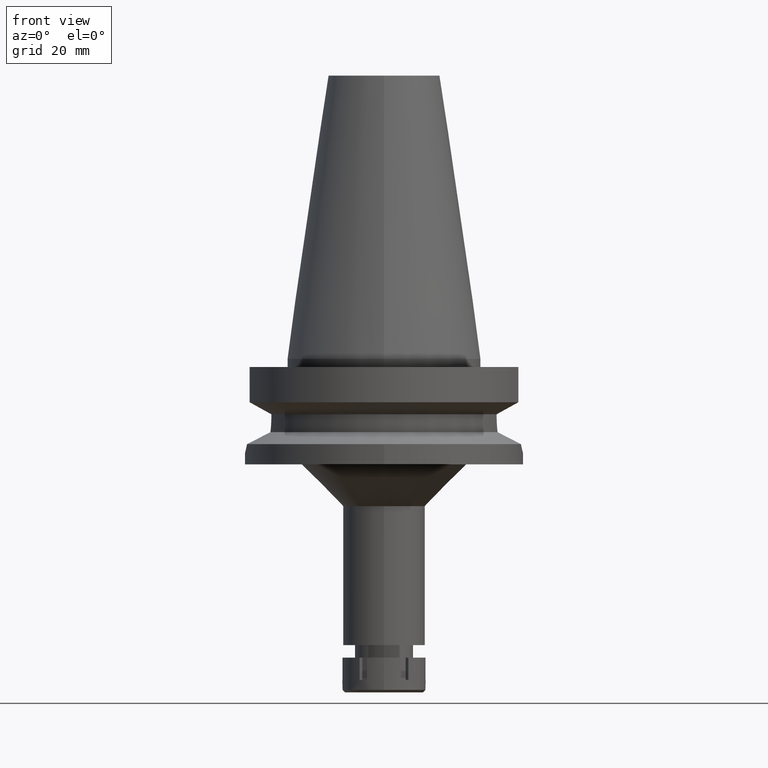
[diagram: clean part render]
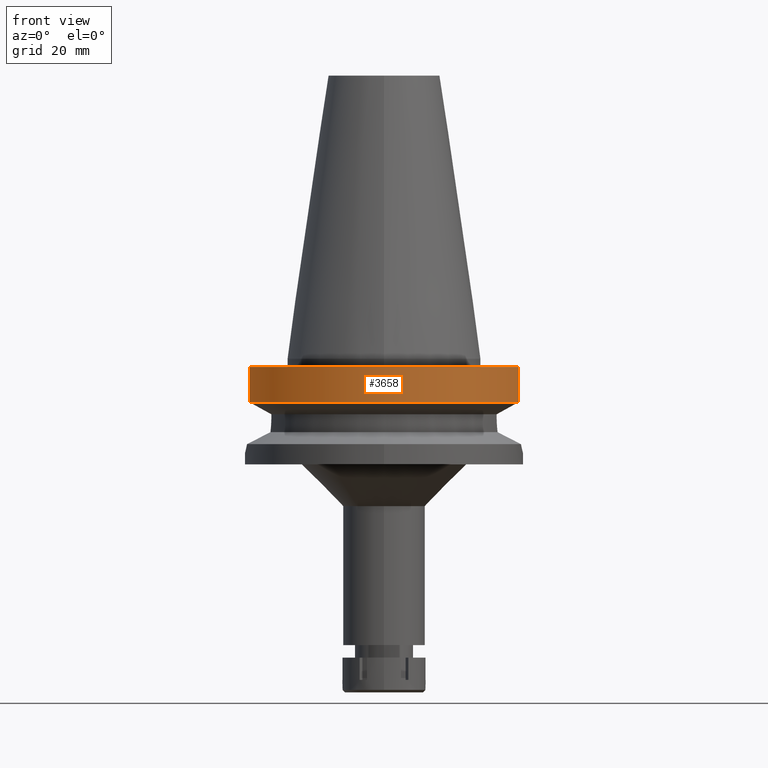
[diagram: same view with one face highlighted and labeled with its STEP entity id]
A machine part, front view. The second image highlights one B-rep face of the part: STEP entity #3658.
In plain terms, the highlighted cylindrical surface (partial cylindrical patch) has radius 50 mm, axis along (0, 0, -1).
Its self-contained STEP definition (entity closure, byte-faithful):
#65 = EDGE_CURVE ( 'NONE', #3279, #769, #309, .T. ) ;
#94 = CIRCLE ( 'NONE', #2636, 50.00000000000000000 ) ;
#199 = CARTESIAN_POINT ( 'NONE',  ( 0.0000000000000000000, 2.602864306907999599E-14, 112.5400000000000063 ) ) ;
#305 = DIRECTION ( 'NONE',  ( 0.0000000000000000000, 0.0000000000000000000, -1.000000000000000000 ) ) ;
#309 = LINE ( 'NONE', #2009, #1038 ) ;
#704 = CYLINDRICAL_SURFACE ( 'NONE', #1113, 50.00000000000000000 ) ;
#705 = ORIENTED_EDGE ( 'NONE', *, *, #65, .F. ) ;
#713 = CARTESIAN_POINT ( 'NONE',  ( 0.0000000000000000000, 1.006319759053999930E-14, -15.66269223573000069 ) ) ;
#769 = VERTEX_POINT ( 'NONE', #2306 ) ;
#934 = CARTESIAN_POINT ( 'NONE',  ( 48.32057015392000210, -12.84999999999999964, -3.000000000000000000 ) ) ;
#1006 = DIRECTION ( 'NONE',  ( 0.0000000000000000000, -1.000000000000000000, 0.0000000000000000000 ) ) ;
#1038 = VECTOR ( 'NONE', #1466, 1000.000000000000114 ) ;
#1055 = VERTEX_POINT ( 'NONE', #2408 ) ;
#1113 = AXIS2_PLACEMENT_3D ( 'NONE', #199, #1897, #1333 ) ;
#1305 = DIRECTION ( 'NONE',  ( 0.0000000000000000000, 0.0000000000000000000, 1.000000000000000000 ) ) ;
#1333 = DIRECTION ( 'NONE',  ( 0.0000000000000000000, -1.000000000000000000, 0.0000000000000000000 ) ) ;
#1369 = ORIENTED_EDGE ( 'NONE', *, *, #1835, .T. ) ;
#1414 = CARTESIAN_POINT ( 'NONE',  ( -48.32056912867000165, -12.85000385529999889, -15.66265770025999871 ) ) ;
#1466 = DIRECTION ( 'NONE',  ( -8.097709466586602791E-08, -3.045024783091851271E-07, -0.9999999999999503730 ) ) ;
#1481 = CARTESIAN_POINT ( 'NONE',  ( 0.0000000000000000000, 2.602864306907999599E-14, -3.000000000000000000 ) ) ;
#1835 = EDGE_CURVE ( 'NONE', #3279, #1055, #3448, .T. ) ;
#1897 = DIRECTION ( 'NONE',  ( 0.0000000000000000000, 0.0000000000000000000, -1.000000000000000000 ) ) ;
#2009 = CARTESIAN_POINT ( 'NONE',  ( 48.32057015392000210, -12.84999999999999964, -3.000000000000000000 ) ) ;
#2158 = EDGE_CURVE ( 'NONE', #2939, #769, #94, .T. ) ;
#2204 = LINE ( 'NONE', #1414, #3359 ) ;
#2306 = CARTESIAN_POINT ( 'NONE',  ( 48.32057015392000210, -12.84999999999999964, -15.66269223573000069 ) ) ;
#2338 = ORIENTED_EDGE ( 'NONE', *, *, #2158, .T. ) ;
#2361 = EDGE_CURVE ( 'NONE', #2939, #1055, #2204, .T. ) ;
#2366 = CARTESIAN_POINT ( 'NONE',  ( -48.32056912867000165, -12.85000385529999889, -15.66265770025999871 ) ) ;
#2408 = CARTESIAN_POINT ( 'NONE',  ( -48.32057015392000210, -12.84999999999999964, -3.000000000000000000 ) ) ;
#2545 = DIRECTION ( 'NONE',  ( -8.096639608656604495E-08, 3.044622469711851165E-07, 0.9999999999999503730 ) ) ;
#2553 = DIRECTION ( 'NONE',  ( 0.0000000000000000000, -1.000000000000000000, 0.0000000000000000000 ) ) ;
#2636 = AXIS2_PLACEMENT_3D ( 'NONE', #713, #1305, #1006 ) ;
#2650 = EDGE_LOOP ( 'NONE', ( #2799, #2338, #705, #1369 ) ) ;
#2799 = ORIENTED_EDGE ( 'NONE', *, *, #2361, .F. ) ;
#2939 = VERTEX_POINT ( 'NONE', #2366 ) ;
#3279 = VERTEX_POINT ( 'NONE', #934 ) ;
#3305 = FACE_OUTER_BOUND ( 'NONE', #2650, .T. ) ;
#3359 = VECTOR ( 'NONE', #2545, 1000.000000000000114 ) ;
#3448 = CIRCLE ( 'NONE', #3565, 50.00000000000000000 ) ;
#3565 = AXIS2_PLACEMENT_3D ( 'NONE', #1481, #305, #2553 ) ;
#3658 = ADVANCED_FACE ( 'NONE', ( #3305 ), #704, .T. ) ;